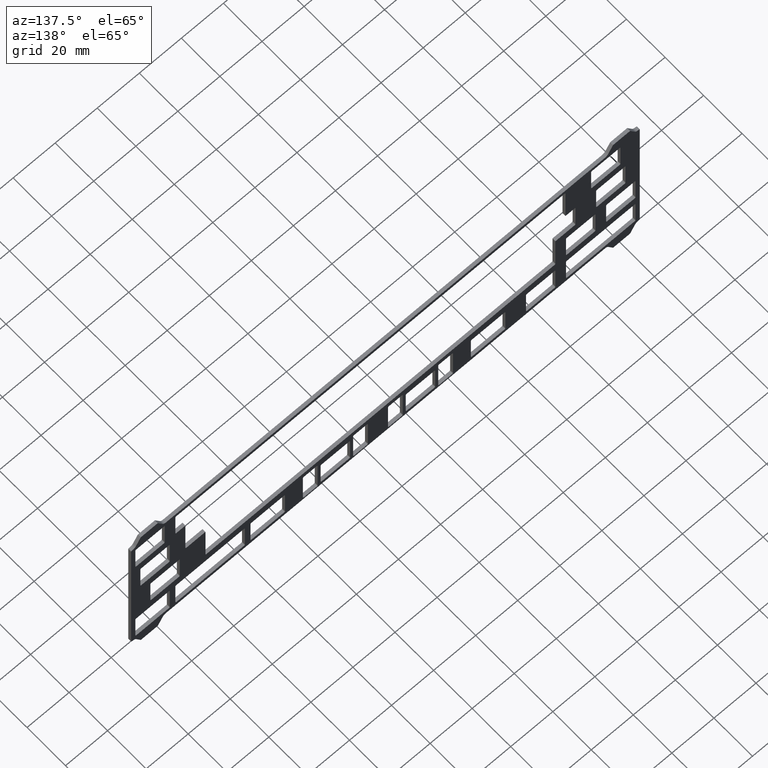
[diagram: clean part render]
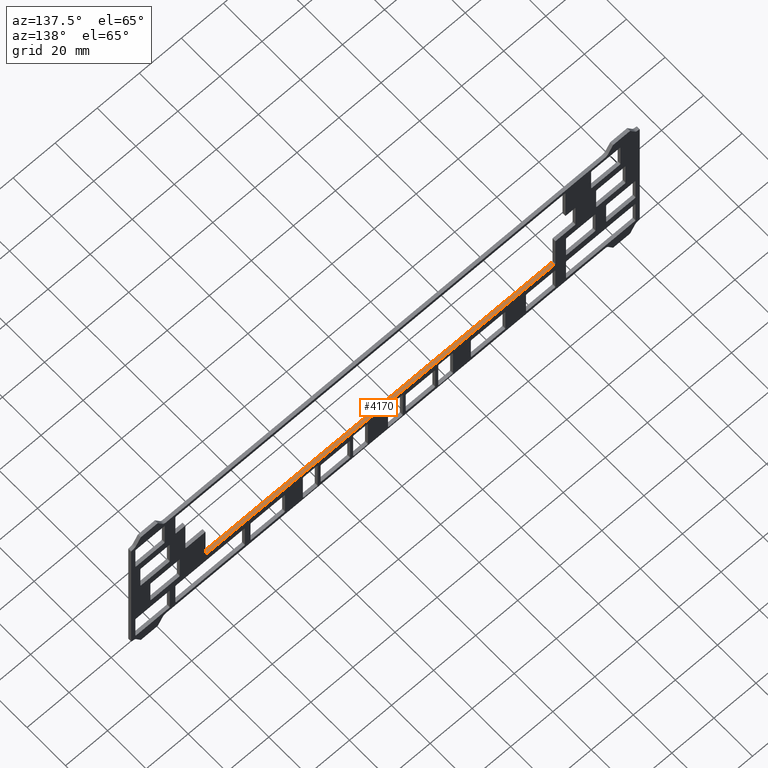
[diagram: same view with one face highlighted and labeled with its STEP entity id]
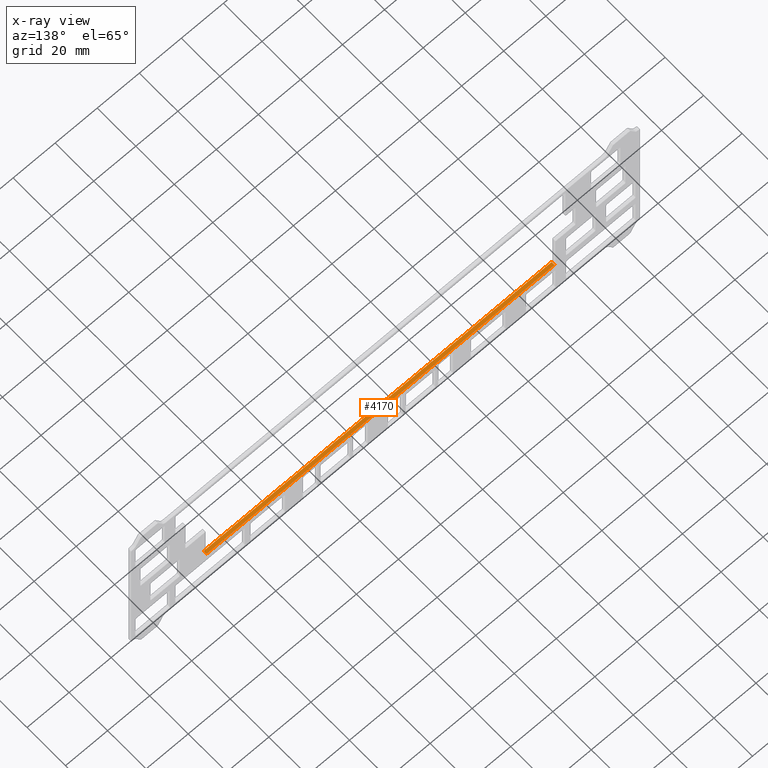
[diagram: x-ray of the same camera — body ghosted, the highlighted face saturated]
A machine part, auxiliary view. The second image highlights one B-rep face of the part: STEP entity #4170.
The next image is the same camera in x-ray: the body ghosted, the highlighted face saturated — about 0% of this face is hidden behind the body in this view.
In plain terms, the highlighted planar face has unit normal (0, -0, 1).
Its self-contained STEP definition (entity closure, byte-faithful):
#524=FACE_OUTER_BOUND('',#770,.T.);
#770=EDGE_LOOP('',(#3779,#3780,#3781,#3782));
#963=LINE('',#6342,#1383);
#998=LINE('',#6480,#1418);
#1192=LINE('',#7005,#1612);
#1193=LINE('',#7006,#1613);
#1383=VECTOR('',#5061,10.);
#1418=VECTOR('',#5170,10.);
#1612=VECTOR('',#5754,10.);
#1613=VECTOR('',#5755,10.);
#1839=VERTEX_POINT('',#6340);
#1840=VERTEX_POINT('',#6341);
#1905=VERTEX_POINT('',#6478);
#1906=VERTEX_POINT('',#6479);
#2299=EDGE_CURVE('',#1839,#1840,#963,.T.);
#2370=EDGE_CURVE('',#1905,#1906,#998,.T.);
#2632=EDGE_CURVE('',#1839,#1906,#1192,.T.);
#2633=EDGE_CURVE('',#1840,#1905,#1193,.T.);
#3779=ORIENTED_EDGE('',*,*,#2299,.F.);
#3780=ORIENTED_EDGE('',*,*,#2632,.T.);
#3781=ORIENTED_EDGE('',*,*,#2370,.F.);
#3782=ORIENTED_EDGE('',*,*,#2633,.F.);
#3976=PLANE('',#4582);
#4170=ADVANCED_FACE('',(#524),#3976,.T.);
#4582=AXIS2_PLACEMENT_3D('',#7004,#5752,#5753);
#5061=DIRECTION('',(-1.,-4.5511206070443E-31,2.17210718691502E-15));
#5170=DIRECTION('',(1.,4.5511206070443E-31,-2.17210718691502E-15));
#5752=DIRECTION('center_axis',(2.85532135591511E-15,-2.22044604925031E-16,
1.));
#5753=DIRECTION('ref_axis',(1.,6.06816080939238E-31,-2.85532135591511E-15));
#5754=DIRECTION('',(2.71926214689378E-32,1.,2.22044604925031E-16));
#5755=DIRECTION('',(2.71926214689378E-32,1.,2.22044604925031E-16));
#6340=CARTESIAN_POINT('',(177.6875,-18.175,76.2499999999999));
#6341=CARTESIAN_POINT('',(12.2875,-18.175,76.25));
#6342=CARTESIAN_POINT('',(25.2875,-18.175,76.25));
#6478=CARTESIAN_POINT('',(12.2875,-16.675,76.25));
#6479=CARTESIAN_POINT('',(177.6875,-16.675,76.2499999999999));
#6480=CARTESIAN_POINT('',(25.2875,-16.675,76.25));
#7004=CARTESIAN_POINT('Origin',(31.3375,-18.175,76.25));
#7005=CARTESIAN_POINT('',(177.6875,-18.175,76.2499999999999));
#7006=CARTESIAN_POINT('',(12.2875,-18.175,76.25));